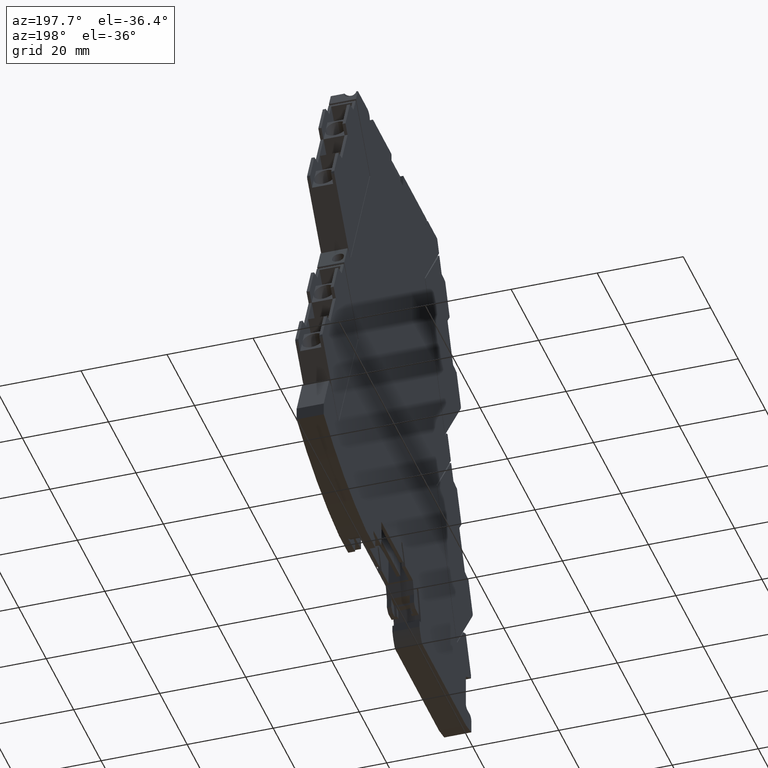
[diagram: clean part render]
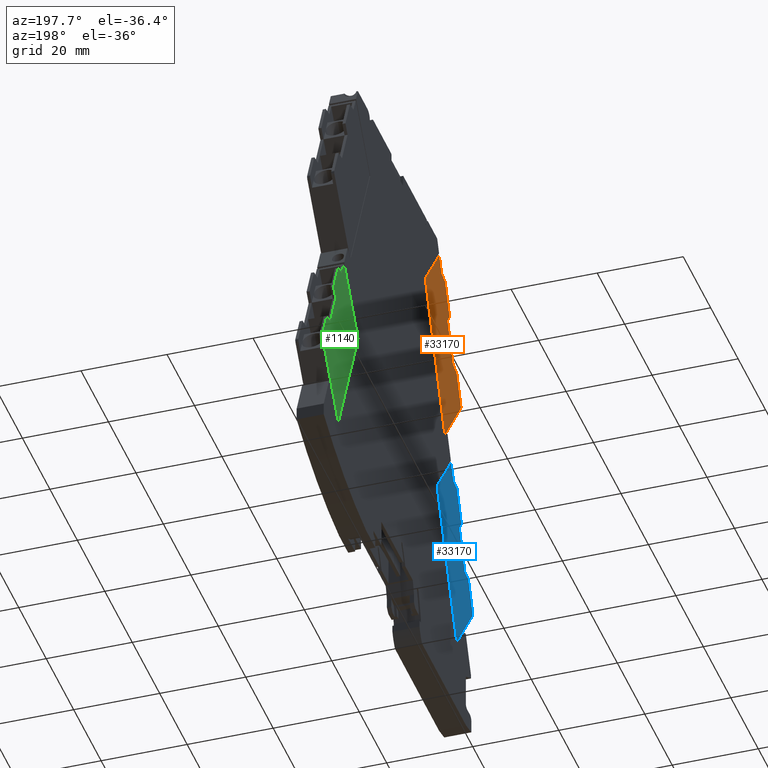
[diagram: same view with three faces highlighted in distinct colors, each labeled with its STEP entity id]
A machine part, auxiliary view with three faces highlighted in distinct colors.
Their STEP definitions:

[orange] entity #33170 — the highlighted planar face has unit normal (-1, 0, 0).
#2400=CARTESIAN_POINT('',(-162.209750519817,-6.99343677588573,
-9.54999999895789));
#2410=VERTEX_POINT('',#2400);
#2590=CARTESIAN_POINT('',(-144.491342192195,23.6870910457856,
-9.55000000083125));
#2600=VERTEX_POINT('',#2590);
#2630=CARTESIAN_POINT('',(-158.170948803993,2.1316282072803E-14,
-9.54999999938491));
#2640=DIRECTION('',(0.500105784302748,0.865964320573852,
-5.28758981044319E-11));
#2650=VECTOR('',#2640,1.);
#2660=LINE('',#2630,#2650);
#2670=EDGE_CURVE('',#2410,#2600,#2660,.T.);
#3340=CARTESIAN_POINT('',(-127.834970243558,23.5417332228139,
-9.55000000252271));
#3350=VERTEX_POINT('',#3340);
#3380=CARTESIAN_POINT('',(0.,22.4261353561559,-9.55000001550444));
#3390=DIRECTION('',(-0.999961923133656,0.00872652753623981,
1.01546791808627E-10));
#3400=VECTOR('',#3390,1.);
#3410=LINE('',#3380,#3400);
#3420=EDGE_CURVE('',#3350,#2600,#3410,.T.);
#3580=CARTESIAN_POINT('',(-127.663522684407,23.241719681013,
-9.55000000253941));
#3590=VERTEX_POINT('',#3580);
#3620=CARTESIAN_POINT('',(-127.836715549065,23.3417408381872,
-9.55000000252205));
#3630=DIRECTION('',(-1.00774222510954E-10,-1.12576479819879E-12,-1.));
#3640=DIRECTION('',(0.999961923133654,-0.00872652753639959,
-1.00760561326841E-10));
#3650=AXIS2_PLACEMENT_3D('',#3620,#3630,#3640);
#3660=CIRCLE('',#3650,0.2);
#3670=EDGE_CURVE('',#3350,#3590,#3660,.T.);
#4330=CARTESIAN_POINT('',(-143.476039707184,-7.62296120159263,
-9.55000000085919));
#4340=VERTEX_POINT('',#4330);
#4680=CARTESIAN_POINT('',(-162.213817258033,-7.45943924342347,
-9.54999999895636));
#4690=VERTEX_POINT('',#4680);
#4720=CARTESIAN_POINT('',(0.,-8.87505648875292,-9.55000001542928));
#4730=DIRECTION('',(0.999961923133656,-0.00872652753623987,
-1.01546791808627E-10));
#4740=VECTOR('',#4730,1.);
#4750=LINE('',#4720,#4740);
#4760=EDGE_CURVE('',#4690,#4340,#4750,.T.);
#7940=CARTESIAN_POINT('',(-129.625928092798,19.8436924645578,
-9.55000000233192));
#7950=VERTEX_POINT('',#7940);
#7980=CARTESIAN_POINT('',(-141.08592147552,2.1316282072803E-14,
-9.55000000112026));
#7990=DIRECTION('',(-0.500105784302748,-0.865964320573852,
5.28759258600076E-11));
#8000=VECTOR('',#7990,1.);
#8010=LINE('',#7980,#8000);
#8020=EDGE_CURVE('',#3590,#7950,#8010,.T.);
#24130=CARTESIAN_POINT('',(-143.467313179645,-6.62299927818887,
-9.55000000086248));
#24140=DIRECTION('',(1.00774222510954E-10,1.12576479819879E-12,1.));
#24150=DIRECTION('',(0.999961923133654,-0.00872652753639959,
-1.00760561326841E-10));
#24160=AXIS2_PLACEMENT_3D('',#24130,#24140,#24150);
#24170=CIRCLE('',#24160,1.);
#24180=CARTESIAN_POINT('',(-142.601348858528,-7.12310506280527,
-9.55000000094924));
#24190=VERTEX_POINT('',#24180);
#24200=EDGE_CURVE('',#4340,#24190,#24170,.T.);
#24360=CARTESIAN_POINT('',(2.8421709430404E-14,9.32563653623513,
-9.55000001547298));
#24370=DIRECTION('',(-0.999961923133656,0.00872652753623987,
1.01546791808627E-10));
#24380=VECTOR('',#24370,1.);
#24390=LINE('',#24360,#24380);
#24400=CARTESIAN_POINT('',(-132.434530595542,10.4813741210917,
-9.55000000202417));
#24410=VERTEX_POINT('',#24400);
#24420=CARTESIAN_POINT('',(-135.019760828803,10.5039350629597,
-9.55000000176164));
#24430=VERTEX_POINT('',#24420);
#24440=EDGE_CURVE('',#24410,#24430,#24390,.T.);
#24770=CARTESIAN_POINT('',(-140.084358501353,1.73426868406698,
-9.55000000122615));
#24780=VERTEX_POINT('',#24770);
#24810=CARTESIAN_POINT('',(-141.08592147552,2.1316282072803E-14,
-9.55000000112026));
#24820=DIRECTION('',(-0.500105784302748,-0.865964320573852,
5.28759258600076E-11));
#24830=VECTOR('',#24820,1.);
#24840=LINE('',#24810,#24830);
#24850=EDGE_CURVE('',#24430,#24780,#24840,.T.);
#25260=CARTESIAN_POINT('',(-138.487662001609,2.1316282072803E-14,
-9.55000000138417));
#25270=DIRECTION('',(-0.500105784302748,-0.865964320573852,
5.28759258600076E-11));
#25280=VECTOR('',#25270,1.);
#25290=LINE('',#25260,#25280);
#25300=CARTESIAN_POINT('',(-138.794183140722,-0.530760447698498,
-9.55000000135177));
#25310=VERTEX_POINT('',#25300);
#25320=EDGE_CURVE('',#25310,#24190,#25290,.T.);
#25450=CARTESIAN_POINT('',(-139.096507752099,2.1316282072803E-14,
-9.55000000132233));
#25460=DIRECTION('',(-0.494944961437488,0.86892432647938,
4.81859274703567E-11));
#25470=VECTOR('',#25460,1.);
#25480=LINE('',#25450,#25470);
#25490=EDGE_CURVE('',#25310,#24780,#25480,.T.);
#26100=CARTESIAN_POINT('',(-128.335752732167,17.5786633327923,
-9.55000000245753));
#26110=VERTEX_POINT('',#26100);
#26140=CARTESIAN_POINT('',(-118.322831491231,2.1316282072803E-14,
-9.55000000343234));
#26150=DIRECTION('',(-0.494944961437488,0.86892432647938,
4.81859274703567E-11));
#26160=VECTOR('',#26150,1.);
#26170=LINE('',#26140,#26160);
#26180=EDGE_CURVE('',#26110,#7950,#26170,.T.);
#26260=CARTESIAN_POINT('',(-138.487662001609,2.1316282072803E-14,
-9.55000000138417));
#26270=DIRECTION('',(-0.500105784302748,-0.865964320573852,
5.28759258600076E-11));
#26280=VECTOR('',#26270,1.);
#26290=LINE('',#26260,#26280);
#26300=EDGE_CURVE('',#26110,#24410,#26290,.T.);
#32920=CARTESIAN_POINT('',(-146.763942497471,10.8898733385578,
-9.55000000056969));
#32930=DIRECTION('',(1.01571614201302E-10,2.40118788303072E-12,1.));
#32940=DIRECTION('',(-1.08412129273731E-9,1.,-2.40118777291478E-12));
#32950=AXIS2_PLACEMENT_3D('',#32920,#32930,#32940);
#32960=PLANE('',#32950);
#32970=ORIENTED_EDGE('',*,*,#3670,.F.);
#32980=ORIENTED_EDGE('',*,*,#8020,.F.);
#32990=ORIENTED_EDGE('',*,*,#26180,.T.);
#33000=ORIENTED_EDGE('',*,*,#26300,.F.);
#33010=ORIENTED_EDGE('',*,*,#24440,.F.);
#33020=ORIENTED_EDGE('',*,*,#24850,.F.);
#33030=ORIENTED_EDGE('',*,*,#25490,.T.);
#33040=ORIENTED_EDGE('',*,*,#25320,.F.);
#33050=ORIENTED_EDGE('',*,*,#24200,.T.);
#33060=ORIENTED_EDGE('',*,*,#4760,.T.);
#33070=CARTESIAN_POINT('',(-162.148719777324,2.1316282072803E-14,
-9.54999999898088));
#33080=DIRECTION('',(0.00872652754141354,0.999961923133611,
-3.28746491834453E-12));
#33090=VECTOR('',#33080,1.);
#33100=LINE('',#33070,#33090);
#33110=EDGE_CURVE('',#4690,#2410,#33100,.T.);
#33120=ORIENTED_EDGE('',*,*,#33110,.F.);
#33130=ORIENTED_EDGE('',*,*,#2670,.F.);
#33140=ORIENTED_EDGE('',*,*,#3420,.T.);
#33150=EDGE_LOOP('',(#33140,#33130,#33120,#33060,#33050,#33040,#33030,
#33020,#33010,#33000,#32990,#32980,#32970));
#33160=FACE_OUTER_BOUND('',#33150,.T.);
#33170=ADVANCED_FACE('',(#33160),#32960,.T.);

[blue] entity #33170 — the highlighted planar face has unit normal (-1, 0, 0).
#2400=CARTESIAN_POINT('',(-162.209750519817,-6.99343677588573,
-9.54999999895789));
#2410=VERTEX_POINT('',#2400);
#2590=CARTESIAN_POINT('',(-144.491342192195,23.6870910457856,
-9.55000000083125));
#2600=VERTEX_POINT('',#2590);
#2630=CARTESIAN_POINT('',(-158.170948803993,2.1316282072803E-14,
-9.54999999938491));
#2640=DIRECTION('',(0.500105784302748,0.865964320573852,
-5.28758981044319E-11));
#2650=VECTOR('',#2640,1.);
#2660=LINE('',#2630,#2650);
#2670=EDGE_CURVE('',#2410,#2600,#2660,.T.);
#3340=CARTESIAN_POINT('',(-127.834970243558,23.5417332228139,
-9.55000000252271));
#3350=VERTEX_POINT('',#3340);
#3380=CARTESIAN_POINT('',(0.,22.4261353561559,-9.55000001550444));
#3390=DIRECTION('',(-0.999961923133656,0.00872652753623981,
1.01546791808627E-10));
#3400=VECTOR('',#3390,1.);
#3410=LINE('',#3380,#3400);
#3420=EDGE_CURVE('',#3350,#2600,#3410,.T.);
#3580=CARTESIAN_POINT('',(-127.663522684407,23.241719681013,
-9.55000000253941));
#3590=VERTEX_POINT('',#3580);
#3620=CARTESIAN_POINT('',(-127.836715549065,23.3417408381872,
-9.55000000252205));
#3630=DIRECTION('',(-1.00774222510954E-10,-1.12576479819879E-12,-1.));
#3640=DIRECTION('',(0.999961923133654,-0.00872652753639959,
-1.00760561326841E-10));
#3650=AXIS2_PLACEMENT_3D('',#3620,#3630,#3640);
#3660=CIRCLE('',#3650,0.2);
#3670=EDGE_CURVE('',#3350,#3590,#3660,.T.);
#4330=CARTESIAN_POINT('',(-143.476039707184,-7.62296120159263,
-9.55000000085919));
#4340=VERTEX_POINT('',#4330);
#4680=CARTESIAN_POINT('',(-162.213817258033,-7.45943924342347,
-9.54999999895636));
#4690=VERTEX_POINT('',#4680);
#4720=CARTESIAN_POINT('',(0.,-8.87505648875292,-9.55000001542928));
#4730=DIRECTION('',(0.999961923133656,-0.00872652753623987,
-1.01546791808627E-10));
#4740=VECTOR('',#4730,1.);
#4750=LINE('',#4720,#4740);
#4760=EDGE_CURVE('',#4690,#4340,#4750,.T.);
#7940=CARTESIAN_POINT('',(-129.625928092798,19.8436924645578,
-9.55000000233192));
#7950=VERTEX_POINT('',#7940);
#7980=CARTESIAN_POINT('',(-141.08592147552,2.1316282072803E-14,
-9.55000000112026));
#7990=DIRECTION('',(-0.500105784302748,-0.865964320573852,
5.28759258600076E-11));
#8000=VECTOR('',#7990,1.);
#8010=LINE('',#7980,#8000);
#8020=EDGE_CURVE('',#3590,#7950,#8010,.T.);
#24130=CARTESIAN_POINT('',(-143.467313179645,-6.62299927818887,
-9.55000000086248));
#24140=DIRECTION('',(1.00774222510954E-10,1.12576479819879E-12,1.));
#24150=DIRECTION('',(0.999961923133654,-0.00872652753639959,
-1.00760561326841E-10));
#24160=AXIS2_PLACEMENT_3D('',#24130,#24140,#24150);
#24170=CIRCLE('',#24160,1.);
#24180=CARTESIAN_POINT('',(-142.601348858528,-7.12310506280527,
-9.55000000094924));
#24190=VERTEX_POINT('',#24180);
#24200=EDGE_CURVE('',#4340,#24190,#24170,.T.);
#24360=CARTESIAN_POINT('',(2.8421709430404E-14,9.32563653623513,
-9.55000001547298));
#24370=DIRECTION('',(-0.999961923133656,0.00872652753623987,
1.01546791808627E-10));
#24380=VECTOR('',#24370,1.);
#24390=LINE('',#24360,#24380);
#24400=CARTESIAN_POINT('',(-132.434530595542,10.4813741210917,
-9.55000000202417));
#24410=VERTEX_POINT('',#24400);
#24420=CARTESIAN_POINT('',(-135.019760828803,10.5039350629597,
-9.55000000176164));
#24430=VERTEX_POINT('',#24420);
#24440=EDGE_CURVE('',#24410,#24430,#24390,.T.);
#24770=CARTESIAN_POINT('',(-140.084358501353,1.73426868406698,
-9.55000000122615));
#24780=VERTEX_POINT('',#24770);
#24810=CARTESIAN_POINT('',(-141.08592147552,2.1316282072803E-14,
-9.55000000112026));
#24820=DIRECTION('',(-0.500105784302748,-0.865964320573852,
5.28759258600076E-11));
#24830=VECTOR('',#24820,1.);
#24840=LINE('',#24810,#24830);
#24850=EDGE_CURVE('',#24430,#24780,#24840,.T.);
#25260=CARTESIAN_POINT('',(-138.487662001609,2.1316282072803E-14,
-9.55000000138417));
#25270=DIRECTION('',(-0.500105784302748,-0.865964320573852,
5.28759258600076E-11));
#25280=VECTOR('',#25270,1.);
#25290=LINE('',#25260,#25280);
#25300=CARTESIAN_POINT('',(-138.794183140722,-0.530760447698498,
-9.55000000135177));
#25310=VERTEX_POINT('',#25300);
#25320=EDGE_CURVE('',#25310,#24190,#25290,.T.);
#25450=CARTESIAN_POINT('',(-139.096507752099,2.1316282072803E-14,
-9.55000000132233));
#25460=DIRECTION('',(-0.494944961437488,0.86892432647938,
4.81859274703567E-11));
#25470=VECTOR('',#25460,1.);
#25480=LINE('',#25450,#25470);
#25490=EDGE_CURVE('',#25310,#24780,#25480,.T.);
#26100=CARTESIAN_POINT('',(-128.335752732167,17.5786633327923,
-9.55000000245753));
#26110=VERTEX_POINT('',#26100);
#26140=CARTESIAN_POINT('',(-118.322831491231,2.1316282072803E-14,
-9.55000000343234));
#26150=DIRECTION('',(-0.494944961437488,0.86892432647938,
4.81859274703567E-11));
#26160=VECTOR('',#26150,1.);
#26170=LINE('',#26140,#26160);
#26180=EDGE_CURVE('',#26110,#7950,#26170,.T.);
#26260=CARTESIAN_POINT('',(-138.487662001609,2.1316282072803E-14,
-9.55000000138417));
#26270=DIRECTION('',(-0.500105784302748,-0.865964320573852,
5.28759258600076E-11));
#26280=VECTOR('',#26270,1.);
#26290=LINE('',#26260,#26280);
#26300=EDGE_CURVE('',#26110,#24410,#26290,.T.);
#32920=CARTESIAN_POINT('',(-146.763942497471,10.8898733385578,
-9.55000000056969));
#32930=DIRECTION('',(1.01571614201302E-10,2.40118788303072E-12,1.));
#32940=DIRECTION('',(-1.08412129273731E-9,1.,-2.40118777291478E-12));
#32950=AXIS2_PLACEMENT_3D('',#32920,#32930,#32940);
#32960=PLANE('',#32950);
#32970=ORIENTED_EDGE('',*,*,#3670,.F.);
#32980=ORIENTED_EDGE('',*,*,#8020,.F.);
#32990=ORIENTED_EDGE('',*,*,#26180,.T.);
#33000=ORIENTED_EDGE('',*,*,#26300,.F.);
#33010=ORIENTED_EDGE('',*,*,#24440,.F.);
#33020=ORIENTED_EDGE('',*,*,#24850,.F.);
#33030=ORIENTED_EDGE('',*,*,#25490,.T.);
#33040=ORIENTED_EDGE('',*,*,#25320,.F.);
#33050=ORIENTED_EDGE('',*,*,#24200,.T.);
#33060=ORIENTED_EDGE('',*,*,#4760,.T.);
#33070=CARTESIAN_POINT('',(-162.148719777324,2.1316282072803E-14,
-9.54999999898088));
#33080=DIRECTION('',(0.00872652754141354,0.999961923133611,
-3.28746491834453E-12));
#33090=VECTOR('',#33080,1.);
#33100=LINE('',#33070,#33090);
#33110=EDGE_CURVE('',#4690,#2410,#33100,.T.);
#33120=ORIENTED_EDGE('',*,*,#33110,.F.);
#33130=ORIENTED_EDGE('',*,*,#2670,.F.);
#33140=ORIENTED_EDGE('',*,*,#3420,.T.);
#33150=EDGE_LOOP('',(#33140,#33130,#33120,#33060,#33050,#33040,#33030,
#33020,#33010,#33000,#32990,#32980,#32970));
#33160=FACE_OUTER_BOUND('',#33150,.T.);
#33170=ADVANCED_FACE('',(#33160),#32960,.T.);

[green] entity #1140 — the highlighted planar face has unit normal (-1, 0, -0).
#10=CARTESIAN_POINT('',(-134.665499640029,36.0148734798086,
-15.8500000018065));
#20=DIRECTION('',(-1.00774222510954E-10,-1.12576479819883E-12,-1.));
#30=DIRECTION('',(-1.08363623629794E-9,1.,-1.12576468899623E-12));
#40=AXIS2_PLACEMENT_3D('',#10,#20,#30);
#50=PLANE('',#40);
#60=CARTESIAN_POINT('',(-162.148719777497,2.1316282072803E-14,
-15.8499999989964));
#70=DIRECTION('',(-0.00872652754141354,-0.999961923133611,
2.0051304366886E-12));
#80=VECTOR('',#70,1.);
#90=LINE('',#60,#80);
#100=CARTESIAN_POINT('',(-162.209750519972,-6.99343677378518,
-15.8499999989823));
#110=VERTEX_POINT('',#100);
#120=CARTESIAN_POINT('',(-162.213817258204,-7.45943924316447,
-15.8499999989814));
#130=VERTEX_POINT('',#120);
#140=EDGE_CURVE('',#110,#130,#90,.T.);
#150=ORIENTED_EDGE('',*,*,#140,.F.);
#160=CARTESIAN_POINT('',(0.,-8.87505648849541,-15.8500000153268));
#170=DIRECTION('',(-0.999961923133656,0.00872652753623987,
1.00760561352886E-10));
#180=VECTOR('',#170,1.);
#190=LINE('',#160,#180);
#200=CARTESIAN_POINT('',(-143.476039707816,-7.62296120132962,
-15.8500000008695));
#210=VERTEX_POINT('',#200);
#220=EDGE_CURVE('',#210,#130,#190,.T.);
#230=ORIENTED_EDGE('',*,*,#220,.T.);
#240=CARTESIAN_POINT('',(-143.46731318028,-6.62299927819597,
-15.8500000008715));
#250=DIRECTION('',(1.00774222510954E-10,1.12576479819879E-12,1.));
#260=DIRECTION('',(0.999961923133654,-0.00872652753639959,
-1.00760561326841E-10));
#270=AXIS2_PLACEMENT_3D('',#240,#250,#260);
#280=CIRCLE('',#270,1.);
#290=CARTESIAN_POINT('',(-142.601348859715,-7.12310506249323,
-15.8500000009582));
#300=VERTEX_POINT('',#290);
#310=EDGE_CURVE('',#210,#300,#280,.T.);
#320=ORIENTED_EDGE('',*,*,#310,.F.);
#330=CARTESIAN_POINT('',(-138.487662002977,2.1316282072803E-14,
-15.8500000013808));
#340=DIRECTION('',(0.500105784302748,0.865964320573852,
-5.13726838846651E-11));
#350=VECTOR('',#340,1.);
#360=LINE('',#330,#350);
#370=CARTESIAN_POINT('',(-138.794183141937,-0.530760447434448,
-15.8500000013493));
#380=VERTEX_POINT('',#370);
#390=EDGE_CURVE('',#300,#380,#360,.T.);
#400=ORIENTED_EDGE('',*,*,#390,.F.);
#410=CARTESIAN_POINT('',(-139.096507753163,2.1316282072803E-14,
-15.8500000013194));
#420=DIRECTION('',(0.494944961437488,-0.86892432647938,
-4.88995233194345E-11));
#430=VECTOR('',#420,1.);
#440=LINE('',#410,#430);
#450=CARTESIAN_POINT('',(-140.084358502568,1.73426868433103,
-15.8500000012218));
#460=VERTEX_POINT('',#450);
#470=EDGE_CURVE('',#460,#380,#440,.T.);
#480=ORIENTED_EDGE('',*,*,#470,.T.);
#490=CARTESIAN_POINT('',(-141.085921476888,2.1316282072803E-14,
-15.8500000011189));
#500=DIRECTION('',(0.500105784302748,0.865964320573852,
-5.13726838846651E-11));
#510=VECTOR('',#500,1.);
#520=LINE('',#490,#510);
#530=CARTESIAN_POINT('',(-135.019760830016,10.5039350632278,
-15.8500000017421));
#540=VERTEX_POINT('',#530);
#550=EDGE_CURVE('',#460,#540,#520,.T.);
#560=ORIENTED_EDGE('',*,*,#550,.F.);
#570=CARTESIAN_POINT('',(2.8421709430404E-14,9.32563653649264,
-15.8500000153473));
#580=DIRECTION('',(0.999961923133656,-0.00872652753623987,
-1.00760561352886E-10));
#590=VECTOR('',#580,1.);
#600=LINE('',#570,#590);
#610=CARTESIAN_POINT('',(-132.434530596755,10.4813741213598,
-15.8500000020026));
#620=VERTEX_POINT('',#610);
#630=EDGE_CURVE('',#540,#620,#600,.T.);
#640=ORIENTED_EDGE('',*,*,#630,.F.);
#650=CARTESIAN_POINT('',(-138.487662002977,2.1316282072803E-14,
-15.8500000013808));
#660=DIRECTION('',(0.500105784302748,0.865964320573852,
-5.13726838846651E-11));
#670=VECTOR('',#660,1.);
#680=LINE('',#650,#670);
#690=CARTESIAN_POINT('',(-128.335752733384,17.5786633330537,
-15.8500000024236));
#700=VERTEX_POINT('',#690);
#710=EDGE_CURVE('',#620,#700,#680,.T.);
#720=ORIENTED_EDGE('',*,*,#710,.F.);
#730=CARTESIAN_POINT('',(-118.322831492299,2.1316282072803E-14,
-15.8500000034129));
#740=DIRECTION('',(0.494944961437488,-0.86892432647938,
-4.88995233194345E-11));
#750=VECTOR('',#740,1.);
#760=LINE('',#730,#750);
#770=CARTESIAN_POINT('',(-129.625928094015,19.8436924648192,
-15.8500000022961));
#780=VERTEX_POINT('',#770);
#790=EDGE_CURVE('',#780,#700,#760,.T.);
#800=ORIENTED_EDGE('',*,*,#790,.T.);
#810=CARTESIAN_POINT('',(-141.085921476888,2.1316282072803E-14,
-15.8500000011189));
#820=DIRECTION('',(0.500105784302748,0.865964320573852,
-5.13726838846651E-11));
#830=VECTOR('',#820,1.);
#840=LINE('',#810,#830);
#850=CARTESIAN_POINT('',(-127.663522685595,23.241719681325,
-15.8500000024977));
#860=VERTEX_POINT('',#850);
#870=EDGE_CURVE('',#780,#860,#840,.T.);
#880=ORIENTED_EDGE('',*,*,#870,.F.);
#890=CARTESIAN_POINT('',(-127.8367155497,23.3417408381801,
-15.8500000024804));
#900=DIRECTION('',(-1.00774222510954E-10,-1.12576479819879E-12,-1.));
#910=DIRECTION('',(0.999961923133654,-0.00872652753639959,
-1.00760561326841E-10));
#920=AXIS2_PLACEMENT_3D('',#890,#900,#910);
#930=CIRCLE('',#920,0.2);
#940=CARTESIAN_POINT('',(-127.834970244193,23.5417332228068,
-15.8500000024808));
#950=VERTEX_POINT('',#940);
#960=EDGE_CURVE('',#950,#860,#930,.T.);
#970=ORIENTED_EDGE('',*,*,#960,.T.);
#980=CARTESIAN_POINT('',(0.,22.4261353564057,-15.850000015362));
#990=DIRECTION('',(0.999961923133656,-0.00872652753623981,
-1.00760561352886E-10));
#1000=VECTOR('',#990,1.);
#1010=LINE('',#980,#1000);
#1020=CARTESIAN_POINT('',(-144.491342193412,23.687091046046,
-15.8500000008024));
#1030=VERTEX_POINT('',#1020);
#1040=EDGE_CURVE('',#1030,#950,#1010,.T.);
#1050=ORIENTED_EDGE('',*,*,#1040,.T.);
#1060=CARTESIAN_POINT('',(-158.170948805361,2.1316282072803E-14,
-15.8499999993972));
#1070=DIRECTION('',(-0.500105784302748,-0.865964320573852,
5.13726561290895E-11));
#1080=VECTOR('',#1070,1.);
#1090=LINE('',#1060,#1080);
#1100=EDGE_CURVE('',#1030,#110,#1090,.T.);
#1110=ORIENTED_EDGE('',*,*,#1100,.F.);
#1120=EDGE_LOOP('',(#1110,#1050,#970,#880,#800,#720,#640,#560,#480,#400,
#320,#230,#150));
#1130=FACE_OUTER_BOUND('',#1120,.T.);
#1140=ADVANCED_FACE('',(#1130),#50,.T.);